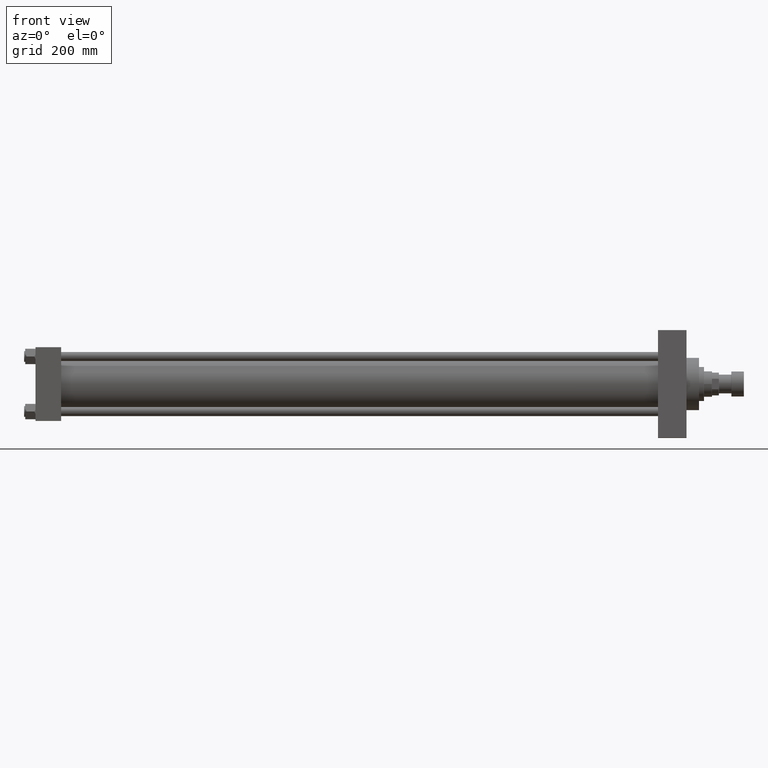
[diagram: clean part render]
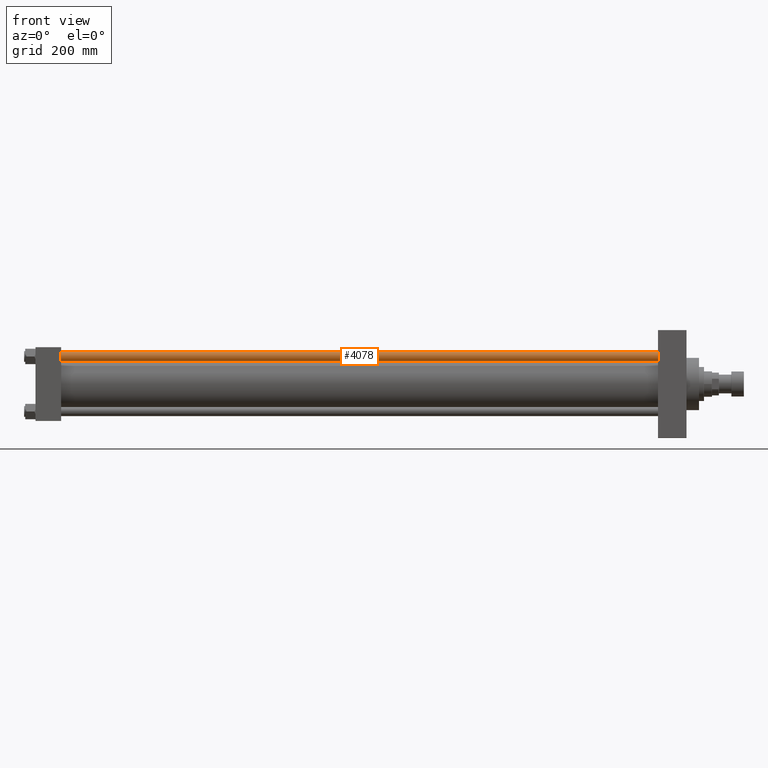
[diagram: same view with one face highlighted and labeled with its STEP entity id]
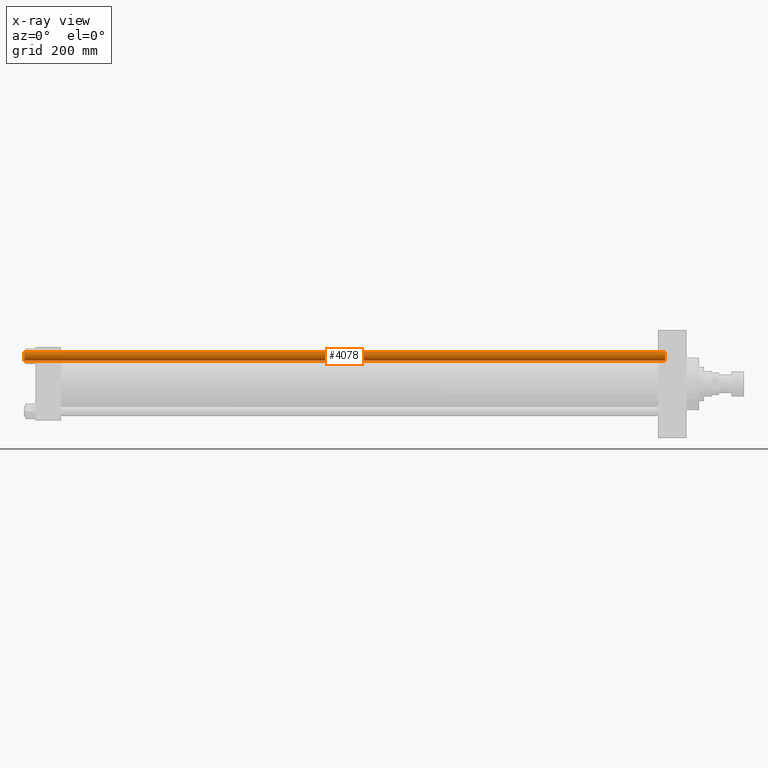
[diagram: x-ray of the same camera — body ghosted, the highlighted face saturated]
A machine part, front view. The second image highlights one B-rep face of the part: STEP entity #4078.
The next image is the same camera in x-ray: the body ghosted, the highlighted face saturated — about 0% of this face is hidden behind the body in this view.
In plain terms, the highlighted cylindrical surface (edge-blend (fillet) strip) has radius 8 mm, axis along (1, 0, 0).
Its self-contained STEP definition (entity closure, byte-faithful):
#2414 = EDGE_CURVE ( 'NONE', #12690, #2660, #40479, .T. ) ;
#2660 = VERTEX_POINT ( 'NONE', #3426 ) ;
#3426 = CARTESIAN_POINT ( 'NONE',  ( 8.000000000000000000, 9.797174393178825657E-16, 1128.500000000000000 ) ) ;
#3547 = DIRECTION ( 'NONE',  ( -0.000000000000000000, -0.000000000000000000, -1.000000000000000000 ) ) ;
#3936 = CARTESIAN_POINT ( 'NONE',  ( -8.000000000000000000, 0.000000000000000000, 1128.500000000000000 ) ) ;
#3986 = VECTOR ( 'NONE', #38383, 1000.000000000000000 ) ;
#4078 = ADVANCED_FACE ( 'NONE', ( #46592 ), #22930, .T. ) ;
#8001 = EDGE_CURVE ( 'NONE', #2660, #16231, #11322, .T. ) ;
#8224 = LINE ( 'NONE', #11879, #3986 ) ;
#8321 = DIRECTION ( 'NONE',  ( -1.000000000000000000, 0.000000000000000000, 0.000000000000000000 ) ) ;
#9631 = EDGE_LOOP ( 'NONE', ( #20391, #12336, #35853, #34967 ) ) ;
#11322 = LINE ( 'NONE', #36890, #22116 ) ;
#11879 = CARTESIAN_POINT ( 'NONE',  ( -8.000000000000000000, 0.000000000000000000, 1129.000000000000000 ) ) ;
#11907 = EDGE_CURVE ( 'NONE', #12690, #39585, #8224, .T. ) ;
#12336 = ORIENTED_EDGE ( 'NONE', *, *, #8001, .T. ) ;
#12559 = CARTESIAN_POINT ( 'NONE',  ( -8.000000000000000000, 0.000000000000000000, 0.5000000000001669775 ) ) ;
#12690 = VERTEX_POINT ( 'NONE', #3936 ) ;
#14859 = AXIS2_PLACEMENT_3D ( 'NONE', #16784, #42122, #23841 ) ;
#15880 = CARTESIAN_POINT ( 'NONE',  ( 0.000000000000000000, 0.000000000000000000, 1129.000000000000000 ) ) ;
#16231 = VERTEX_POINT ( 'NONE', #40887 ) ;
#16784 = CARTESIAN_POINT ( 'NONE',  ( 0.000000000000000000, 0.000000000000000000, 1128.500000000000000 ) ) ;
#19313 = DIRECTION ( 'NONE',  ( -0.000000000000000000, -0.000000000000000000, 1.000000000000000000 ) ) ;
#19555 = DIRECTION ( 'NONE',  ( 1.000000000000000000, 0.000000000000000000, 0.000000000000000000 ) ) ;
#20391 = ORIENTED_EDGE ( 'NONE', *, *, #2414, .T. ) ;
#20491 = EDGE_CURVE ( 'NONE', #16231, #39585, #37171, .T. ) ;
#22116 = VECTOR ( 'NONE', #3547, 1000.000000000000000 ) ;
#22930 = CYLINDRICAL_SURFACE ( 'NONE', #26212, 8.000000000000000000 ) ;
#23841 = DIRECTION ( 'NONE',  ( 1.000000000000000000, 0.000000000000000000, 0.000000000000000000 ) ) ;
#26212 = AXIS2_PLACEMENT_3D ( 'NONE', #15880, #26575, #8321 ) ;
#26575 = DIRECTION ( 'NONE',  ( -0.000000000000000000, -0.000000000000000000, -1.000000000000000000 ) ) ;
#30925 = AXIS2_PLACEMENT_3D ( 'NONE', #45825, #19313, #19555 ) ;
#34967 = ORIENTED_EDGE ( 'NONE', *, *, #11907, .F. ) ;
#35853 = ORIENTED_EDGE ( 'NONE', *, *, #20491, .T. ) ;
#36890 = CARTESIAN_POINT ( 'NONE',  ( 8.000000000000000000, 9.797174393178825657E-16, 1129.000000000000000 ) ) ;
#37171 = CIRCLE ( 'NONE', #30925, 8.000000000000000000 ) ;
#38383 = DIRECTION ( 'NONE',  ( -0.000000000000000000, -0.000000000000000000, -1.000000000000000000 ) ) ;
#39585 = VERTEX_POINT ( 'NONE', #12559 ) ;
#40479 = CIRCLE ( 'NONE', #14859, 8.000000000000000000 ) ;
#40887 = CARTESIAN_POINT ( 'NONE',  ( 8.000000000000000000, 9.797174393178825657E-16, 0.5000000000001669775 ) ) ;
#42122 = DIRECTION ( 'NONE',  ( 0.000000000000000000, 0.000000000000000000, -1.000000000000000000 ) ) ;
#45825 = CARTESIAN_POINT ( 'NONE',  ( 0.000000000000000000, 0.000000000000000000, 0.5000000000001669775 ) ) ;
#46592 = FACE_OUTER_BOUND ( 'NONE', #9631, .T. ) ;